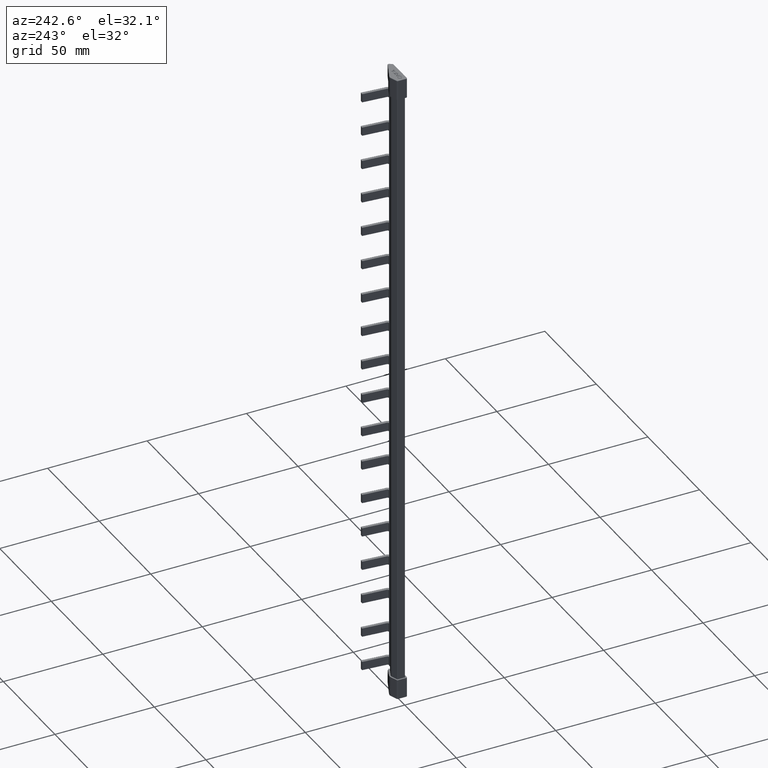
[diagram: clean part render]
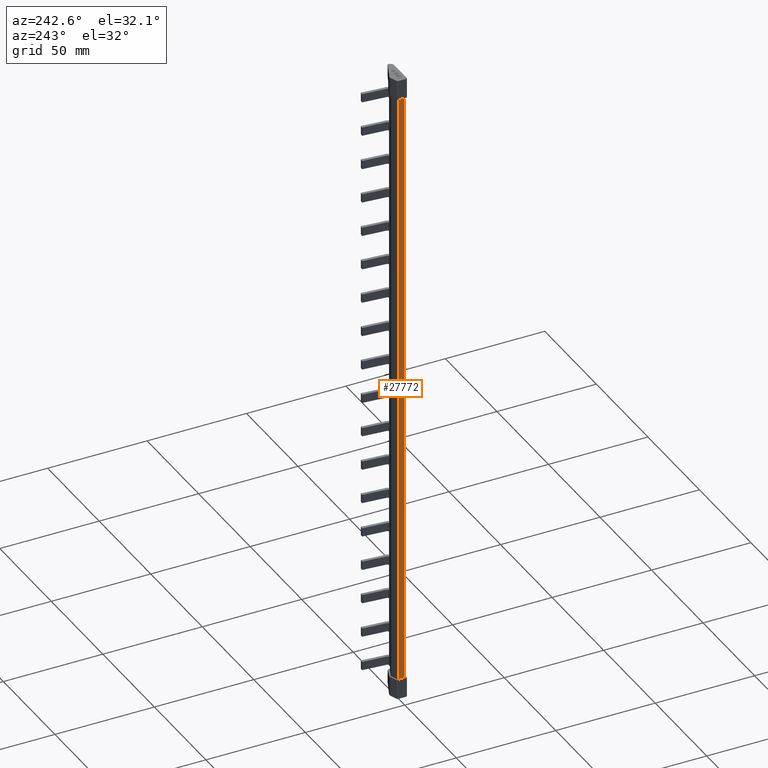
[diagram: same view with one face highlighted and labeled with its STEP entity id]
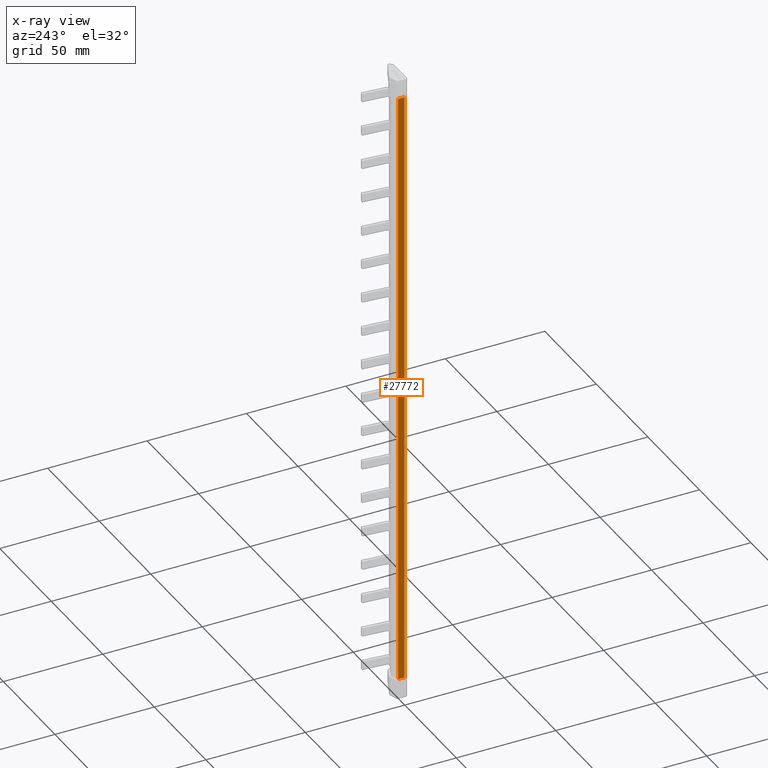
[diagram: x-ray of the same camera — body ghosted, the highlighted face saturated]
A machine part, auxiliary view. The second image highlights one B-rep face of the part: STEP entity #27772.
The next image is the same camera in x-ray: the body ghosted, the highlighted face saturated — about 0% of this face is hidden behind the body in this view.
In plain terms, the highlighted planar face has unit normal (1, 0, -0).
Its self-contained STEP definition (entity closure, byte-faithful):
#3745 = EDGE_CURVE ( 'NONE', #17568, #17518, #23656, .T. ) ;
#3769 = EDGE_CURVE ( 'NONE', #17518, #17509, #23816, .T. ) ;
#3785 = EDGE_CURVE ( 'NONE', #17545, #17568, #23886, .T. ) ;
#3861 = EDGE_CURVE ( 'NONE', #17509, #17545, #10254, .T. ) ;
#6752 = AXIS2_PLACEMENT_3D ( 'NONE', #20654, #20679, #20680 ) ;
#9383 = CARTESIAN_POINT ( 'NONE',  ( -0.4999998917564029700, 3.615511274208506300, -95.89999999999996300 ) ) ;
#9387 = CARTESIAN_POINT ( 'NONE',  ( -0.4999998829036955700, 0.4999999964481565100, 209.9000000000000100 ) ) ;
#9392 = CARTESIAN_POINT ( 'NONE',  ( -0.4999999051901471400, 3.615511274208506300, 209.9000000000000100 ) ) ;
#9465 = CARTESIAN_POINT ( 'NONE',  ( -0.4999998080029879900, 0.4999999953826024200, -95.89999999999999100 ) ) ;
#10228 = DIRECTION ( 'NONE',  ( -1.522599007603421600E-056, -1.000000000000000000, -3.939912114750718400E-031 ) ) ;
#10248 = CARTESIAN_POINT ( 'NONE',  ( -0.4999998735868457800, -5.682891657254884900E-009, 209.9000000000000100 ) ) ;
#10254 = LINE ( 'NONE', #10248, #28798 ) ;
#12010 = ORIENTED_EDGE ( 'NONE', *, *, #3769, .F. ) ;
#12015 = ORIENTED_EDGE ( 'NONE', *, *, #3861, .F. ) ;
#12025 = ORIENTED_EDGE ( 'NONE', *, *, #3785, .F. ) ;
#12084 = ORIENTED_EDGE ( 'NONE', *, *, #3745, .F. ) ;
#17410 = EDGE_LOOP ( 'NONE', ( #12084, #12025, #12015, #12010 ) ) ;
#17509 = VERTEX_POINT ( 'NONE', #9392 ) ;
#17518 = VERTEX_POINT ( 'NONE', #9383 ) ;
#17545 = VERTEX_POINT ( 'NONE', #9387 ) ;
#17568 = VERTEX_POINT ( 'NONE', #9465 ) ;
#20654 = CARTESIAN_POINT ( 'NONE',  ( -0.5000000000000559600, 3.615511274208504900, 219.0000000000000000 ) ) ;
#20671 = FACE_OUTER_BOUND ( 'NONE', #17410, .T. ) ;
#20679 = DIRECTION ( 'NONE',  ( 1.000000000000000000, 3.563533965728333600E-014, -0.0000000000000000000 ) ) ;
#20680 = DIRECTION ( 'NONE',  ( -3.563533965728333600E-014, 1.000000000000000000, 0.0000000000000000000 ) ) ;
#20685 = PLANE ( 'NONE',  #6752 ) ;
#23632 = CARTESIAN_POINT ( 'NONE',  ( -0.4999998198518690300, -5.682891657254884900E-009, -95.89999999999999100 ) ) ;
#23638 = DIRECTION ( 'NONE',  ( 1.522599007603421600E-056, 1.000000000000000000, -3.939912114750718400E-031 ) ) ;
#23656 = LINE ( 'NONE', #23632, #28753 ) ;
#23799 = CARTESIAN_POINT ( 'NONE',  ( -0.5000000000000559600, 3.615511274208506700, 219.0000000000000000 ) ) ;
#23802 = DIRECTION ( 'NONE',  ( 0.0000000000000000000, 0.0000000000000000000, 1.000000000000000000 ) ) ;
#23816 = LINE ( 'NONE', #23799, #28749 ) ;
#23868 = DIRECTION ( 'NONE',  ( -0.0000000000000000000, -0.0000000000000000000, -1.000000000000000000 ) ) ;
#23879 = CARTESIAN_POINT ( 'NONE',  ( -0.4999999999999449300, 0.4999999957377865800, 219.0000000000000000 ) ) ;
#23886 = LINE ( 'NONE', #23879, #28748 ) ;
#27772 = ADVANCED_FACE ( 'NONE', ( #20671 ), #20685, .F. ) ;
#28748 = VECTOR ( 'NONE', #23868, 1000.000000000000000 ) ;
#28749 = VECTOR ( 'NONE', #23802, 1000.000000000000000 ) ;
#28753 = VECTOR ( 'NONE', #23638, 1000.000000000000000 ) ;
#28798 = VECTOR ( 'NONE', #10228, 1000.000000000000000 ) ;